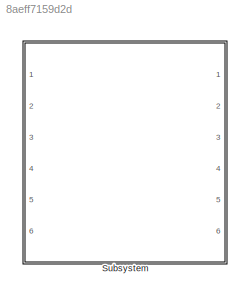
MODEL slx_8aeff7159d2d
KIND model
CONFIG AbsTol = auto
CONFIG EnableMultiTasking = on
CONFIG FixedStep = 0.025
CONFIG MaxStep = auto
CONFIG MinStep = auto
CONFIG RelTol = 1e-3
CONFIG SampleTimeConstraint = Unconstrained
CONFIG Solver = FixedStepDiscrete
CONFIG SolverName = FixedStepDiscrete
CONFIG StartTime = 0.0
CONFIG StopTime = inf
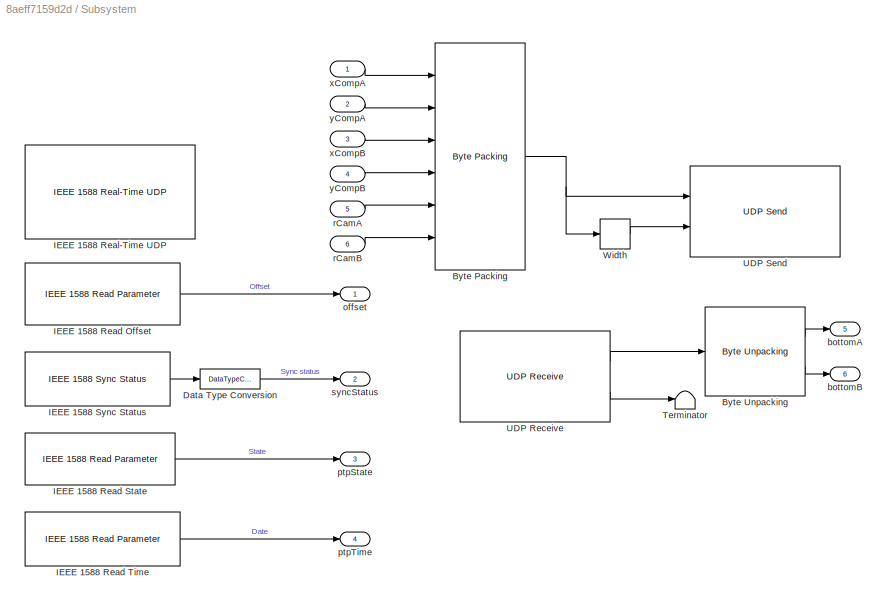
BLOCK [SubSystem] Subsystem
  Ports = [6, 6]
  RequestExecContextInheritance = off
  TreatAsAtomicUnit = on
BLOCK [Reference] Subsystem/Byte Packing  REF=xpcutilitieslib/Byte Packing 
  Ports = [6, 1]
  SourceBlock = xpcutilitieslib/Byte Packing
  SourceProductBaseCode = XP
  SourceProductName = Simulink Real-Time
  SourceType = xpcbytepacking
BLOCK [Reference] Subsystem/Byte Unpacking  REF=xpcutilitieslib/Byte Unpacking 
  Ports = [1, 2]
  SourceBlock = xpcutilitieslib/Byte Unpacking
  SourceProductBaseCode = XP
  SourceProductName = Simulink Real-Time
  SourceType = xpcbytepacking
BLOCK [DataTypeConversion] Subsystem/Data Type Conversion
  RndMeth = Floor
  SaturateOnIntegerOverflow = off
BLOCK [Reference] Subsystem/IEEE 1588 Read Offset  REF=ptplib/IEEE 1588
Read Parameter
  Ports = [0, 1]
  Priority = 1
  SourceBlock = ptplib/IEEE 1588\nRead Parameter
  SourceProductBaseCode = XP
  SourceProductName = Simulink Real-Time
  SourceType = IEEE_1588_read_param
BLOCK [Reference] Subsystem/IEEE 1588 Read State  REF=ptplib/IEEE 1588
Read Parameter
  Ports = [0, 1]
  Priority = 1
  SourceBlock = ptplib/IEEE 1588\nRead Parameter
  SourceProductBaseCode = XP
  SourceProductName = Simulink Real-Time
  SourceType = IEEE_1588_read_param
BLOCK [Reference] Subsystem/IEEE 1588 Read Time  REF=ptplib/IEEE 1588
Read Parameter
  Ports = [0, 1]
  Priority = 1
  SourceBlock = ptplib/IEEE 1588\nRead Parameter
  SourceProductBaseCode = XP
  SourceProductName = Simulink Real-Time
  SourceType = IEEE_1588_read_param
BLOCK [Reference] Subsystem/IEEE 1588 Real-Time UDP  REF=ptplib/IEEE 1588 Real-Time UDP
  Ports = []
  Priority = 0
  SourceBlock = ptplib/IEEE 1588 Real-Time UDP
  SourceProductBaseCode = XP
  SourceProductName = Simulink Real-Time
  SourceType = IEEE1588_UDP
BLOCK [Reference] Subsystem/IEEE 1588 Sync Status  REF=ptplib/IEEE 1588
Sync Status
  Ports = [0, 1]
  Priority = 1
  SourceBlock = ptplib/IEEE 1588\nSync Status
  SourceProductBaseCode = XP
  SourceProductName = Simulink Real-Time
  SourceType = IEEE_1588_sync_status
BLOCK [Terminator] Subsystem/Terminator
BLOCK [Reference] Subsystem/UDP Receive  REF=xpcrtudplib/UDP Receive
  Ports = [0, 2]
  SourceBlock = xpcrtudplib/UDP Receive
  SourceProductBaseCode = XP
  SourceProductName = Simulink Real-Time
  SourceType = slrtudpreceive
BLOCK [Reference] Subsystem/UDP Send  REF=xpcrtudplib/UDP Send
  Ports = [2]
  SourceBlock = xpcrtudplib/UDP Send
  SourceProductBaseCode = XP
  SourceProductName = Simulink Real-Time
  SourceType = slrtudpsend
BLOCK [Width] Subsystem/Width
BLOCK [Outport] Subsystem/bottomA
  IconDisplay = Port number
  Port = 5
BLOCK [Outport] Subsystem/bottomB
  IconDisplay = Port number
  Port = 6
BLOCK [Outport] Subsystem/offset
  IconDisplay = Port number
BLOCK [Outport] Subsystem/ptpState
  IconDisplay = Port number
  Port = 3
BLOCK [Outport] Subsystem/ptpTime
  IconDisplay = Port number
  Port = 4
BLOCK [Inport] Subsystem/rCamA
  IconDisplay = Port number
  Port = 5
BLOCK [Inport] Subsystem/rCamB
  IconDisplay = Port number
  Port = 6
BLOCK [Outport] Subsystem/syncStatus
  IconDisplay = Port number
  Port = 2
BLOCK [Inport] Subsystem/xCompA
  IconDisplay = Port number
BLOCK [Inport] Subsystem/xCompB
  IconDisplay = Port number
  Port = 3
BLOCK [Inport] Subsystem/yCompA
  IconDisplay = Port number
  Port = 2
BLOCK [Inport] Subsystem/yCompB
  IconDisplay = Port number
  Port = 4
NET Subsystem/Byte Packing:1 -> Subsystem/UDP Send:1, Subsystem/Width:1
LINE Subsystem/Byte Unpacking:1 -> Subsystem/bottomA:1
LINE Subsystem/Byte Unpacking:2 -> Subsystem/bottomB:1
LINE Subsystem/Data Type Conversion:1 -> Subsystem/syncStatus:1
LINE Subsystem/IEEE 1588 Read Offset:1 -> Subsystem/offset:1
LINE Subsystem/IEEE 1588 Read State:1 -> Subsystem/ptpState:1
LINE Subsystem/IEEE 1588 Read Time:1 -> Subsystem/ptpTime:1
LINE Subsystem/IEEE 1588 Sync Status:1 -> Subsystem/Data Type Conversion:1
LINE Subsystem/UDP Receive:1 -> Subsystem/Byte Unpacking:1
LINE Subsystem/UDP Receive:2 -> Subsystem/Terminator:1
LINE Subsystem/Width:1 -> Subsystem/UDP Send:2
LINE Subsystem/rCamA:1 -> Subsystem/Byte Packing:5
LINE Subsystem/rCamB:1 -> Subsystem/Byte Packing:6
LINE Subsystem/xCompA:1 -> Subsystem/Byte Packing:1
LINE Subsystem/xCompB:1 -> Subsystem/Byte Packing:3
LINE Subsystem/yCompA:1 -> Subsystem/Byte Packing:2
LINE Subsystem/yCompB:1 -> Subsystem/Byte Packing:4
note: NET lines group one-source signal fan-out (src -> all destinations, sorted); 1:1 wires keep LINE
